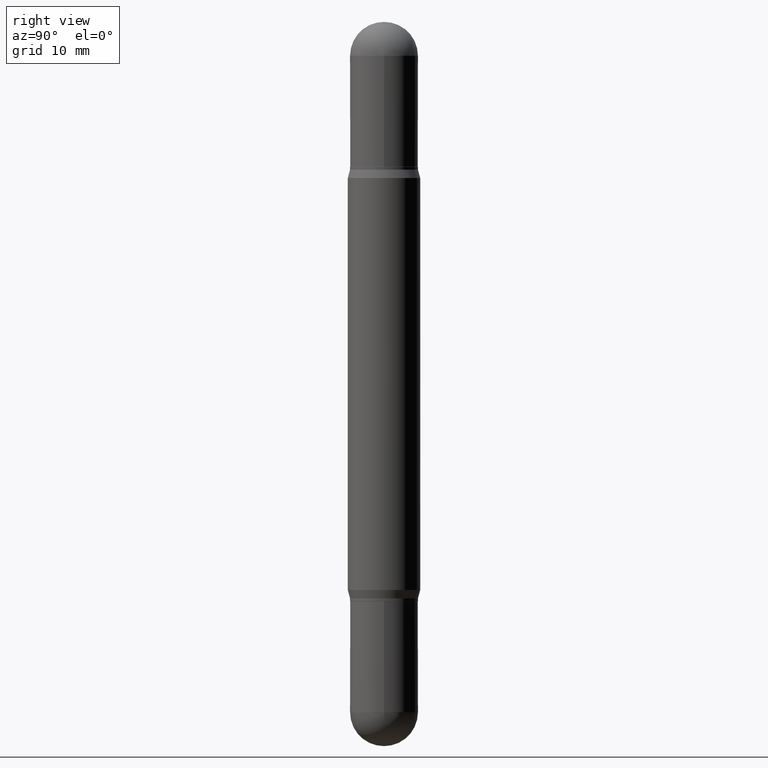
[diagram: clean part render]
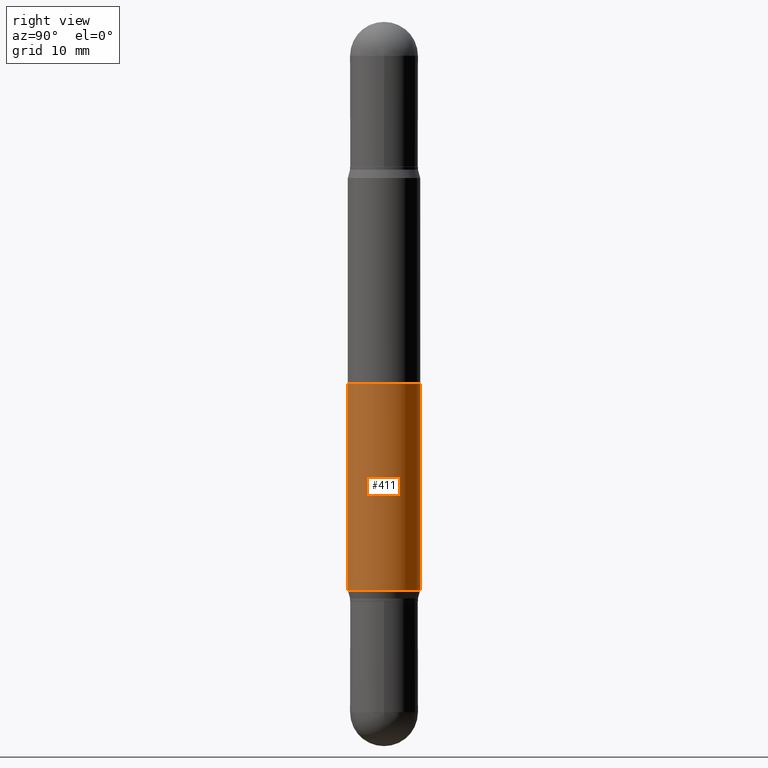
[diagram: same view with one face highlighted and labeled with its STEP entity id]
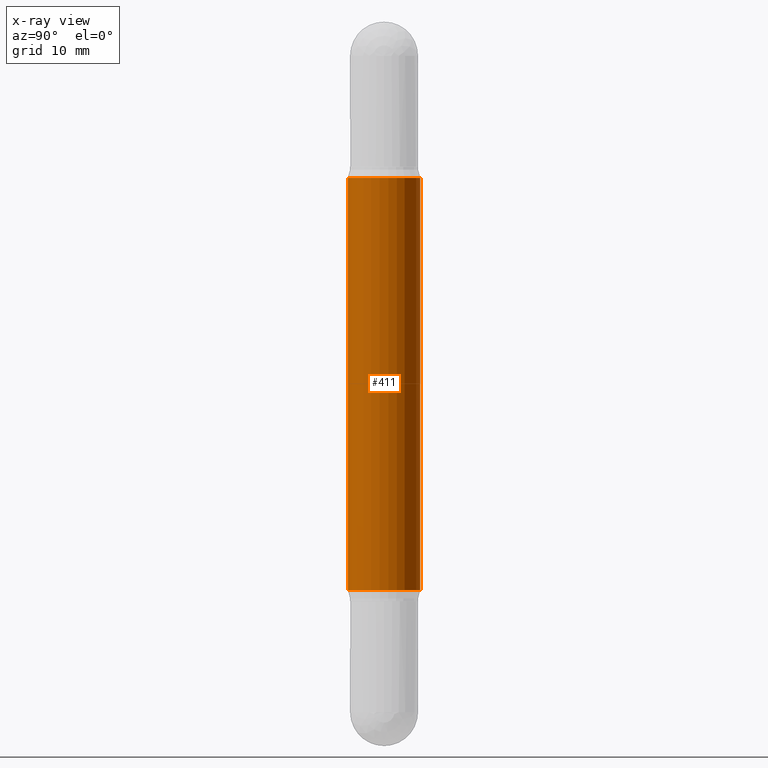
[diagram: x-ray of the same camera — body ghosted, the highlighted face saturated]
A machine part, right view. The second image highlights one B-rep face of the part: STEP entity #411.
The next image is the same camera in x-ray: the body ghosted, the highlighted face saturated — about 0% of this face is hidden behind the body in this view.
In plain terms, the highlighted cylindrical surface (edge-blend (fillet) strip) has radius 3.175 mm, axis along (-0, -0, -1).
Its self-contained STEP definition (entity closure, byte-faithful):
#66 = DIRECTION ( 'NONE',  ( -6.982962677686265922E-15, -1.000000000000000000, 4.370956789862821150E-15 ) ) ;
#69 = EDGE_CURVE ( 'NONE', #503, #451, #950, .T. ) ;
#77 = ORIENTED_EDGE ( 'NONE', *, *, #743, .T. ) ;
#85 = DIRECTION ( 'NONE',  ( -2.445630722844356315E-29, -3.479846340849554879E-15, -1.000000000000000000 ) ) ;
#97 = CIRCLE ( 'NONE', #1072, 0.1250000000000000000 ) ;
#101 = DIRECTION ( 'NONE',  ( -2.445630722844356315E-29, -3.479846340849554879E-15, -1.000000000000000000 ) ) ;
#163 = VERTEX_POINT ( 'NONE', #608 ) ;
#218 = DIRECTION ( 'NONE',  ( -6.982962677686265922E-15, -1.000000000000000000, 4.370956789862821150E-15 ) ) ;
#244 = CARTESIAN_POINT ( 'NONE',  ( 8.575622497214718164E-16, 0.1249999999999931583, -1.960890003700963113 ) ) ;
#297 = AXIS2_PLACEMENT_3D ( 'NONE', #382, #1076, #218 ) ;
#334 = VECTOR ( 'NONE', #101, 39.37007874015748143 ) ;
#338 = EDGE_CURVE ( 'NONE', #778, #163, #489, .T. ) ;
#344 = ORIENTED_EDGE ( 'NONE', *, *, #69, .F. ) ;
#355 = ORIENTED_EDGE ( 'NONE', *, *, #338, .T. ) ;
#382 = CARTESIAN_POINT ( 'NONE',  ( 4.795612837169457572E-29, -6.845956176288789292E-15, -1.960890003700962447 ) ) ;
#411 = ADVANCED_FACE ( 'NONE', ( #749 ), #755, .T. ) ;
#443 = DIRECTION ( 'NONE',  ( 2.445630722844356315E-29, 3.479846340849554879E-15, 1.000000000000000000 ) ) ;
#451 = VERTEX_POINT ( 'NONE', #244 ) ;
#460 = CIRCLE ( 'NONE', #297, 0.1250000000000000000 ) ;
#489 = LINE ( 'NONE', #643, #701 ) ;
#503 = VERTEX_POINT ( 'NONE', #951 ) ;
#608 = CARTESIAN_POINT ( 'NONE',  ( -8.728703347107353169E-16, -0.1250000000000068556, -1.960890003700962003 ) ) ;
#643 = CARTESIAN_POINT ( 'NONE',  ( -8.728703347107832402E-16, -0.1250000000000087153, -2.499999999999999556 ) ) ;
#701 = VECTOR ( 'NONE', #734, 39.37007874015748143 ) ;
#709 = CARTESIAN_POINT ( 'NONE',  ( 4.795612837169457572E-29, -1.890273853088953241E-15, -0.5391099962990375527 ) ) ;
#734 = DIRECTION ( 'NONE',  ( -2.445630722844356315E-29, -3.479846340849554879E-15, -1.000000000000000000 ) ) ;
#743 = EDGE_CURVE ( 'NONE', #163, #451, #460, .T. ) ;
#749 = FACE_OUTER_BOUND ( 'NONE', #862, .T. ) ;
#755 = CYLINDRICAL_SURFACE ( 'NONE', #1092, 0.1250000000000000000 ) ;
#778 = VERTEX_POINT ( 'NONE', #910 ) ;
#790 = CARTESIAN_POINT ( 'NONE',  ( 8.575622497214413467E-16, 0.1249999999999912847, -2.500000000000000444 ) ) ;
#792 = DIRECTION ( 'NONE',  ( -6.982962677686265922E-15, -1.000000000000000000, 3.278217592397115862E-15 ) ) ;
#827 = EDGE_CURVE ( 'NONE', #778, #503, #97, .T. ) ;
#862 = EDGE_LOOP ( 'NONE', ( #344, #1084, #355, #77 ) ) ;
#910 = CARTESIAN_POINT ( 'NONE',  ( -8.728703347107353169E-16, -0.1250000000000018874, -0.5391099962990372196 ) ) ;
#950 = LINE ( 'NONE', #790, #334 ) ;
#951 = CARTESIAN_POINT ( 'NONE',  ( 8.575622497214892700E-16, 0.1249999999999980987, -0.5391099962990379968 ) ) ;
#1072 = AXIS2_PLACEMENT_3D ( 'NONE', #709, #443, #792 ) ;
#1076 = DIRECTION ( 'NONE',  ( -2.445630722844356315E-29, 3.491249464971418957E-15, 1.000000000000000000 ) ) ;
#1084 = ORIENTED_EDGE ( 'NONE', *, *, #827, .F. ) ;
#1092 = AXIS2_PLACEMENT_3D ( 'NONE', #1102, #85, #66 ) ;
#1102 = CARTESIAN_POINT ( 'NONE',  ( 0.000000000000000000, -8.713869757276216901E-15, -2.500000000000000000 ) ) ;